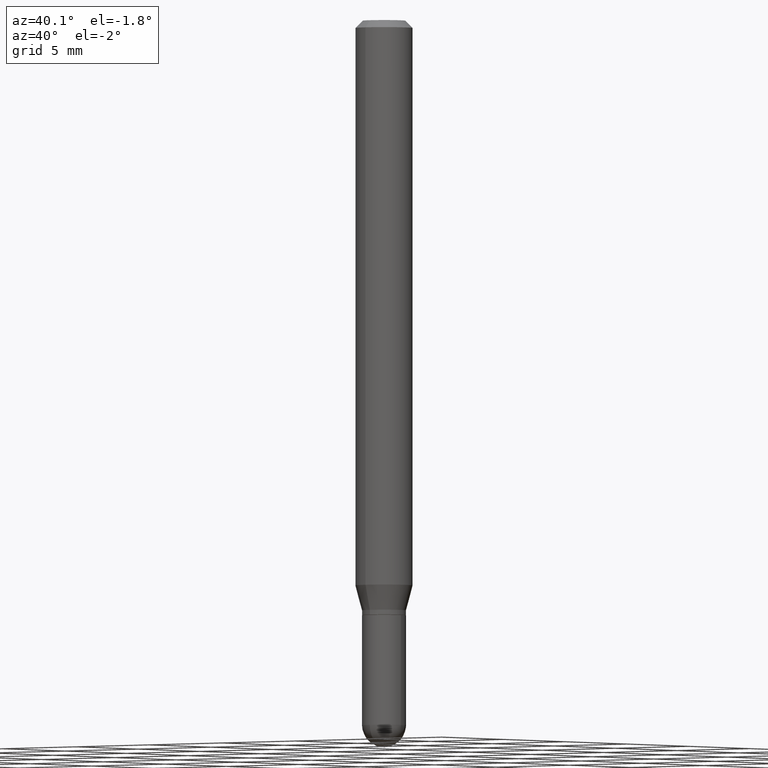
[diagram: clean part render]
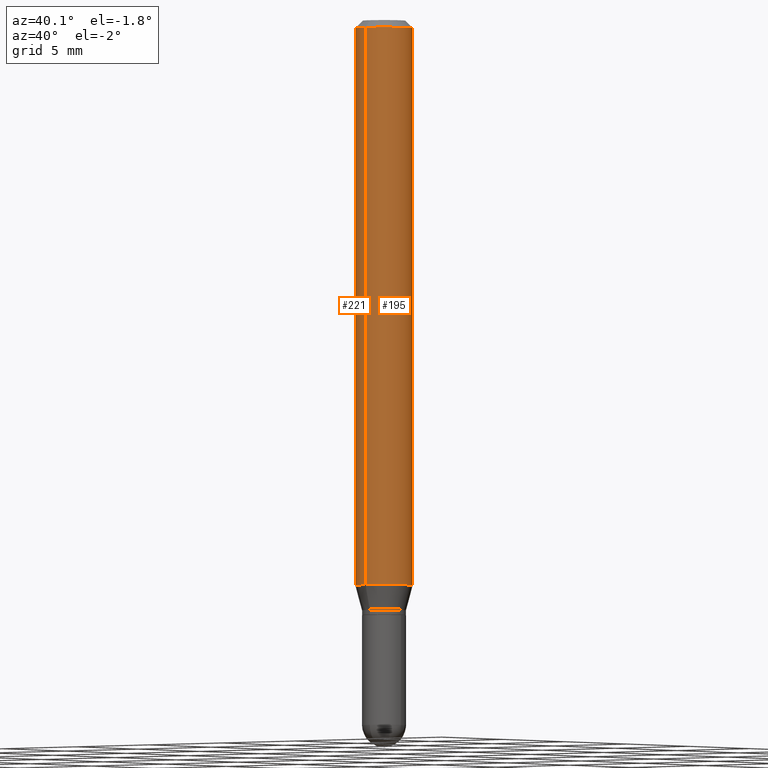
[diagram: same view with one multi-face feature highlighted, each face labeled with its STEP entity id]
A machine part, auxiliary view. The highlighted faces form ONE feature: a constant-radius fillet chain: 2 tangent blend faces with common blend radius 1.4999 mm. The faces share edges in the B-rep.
Their STEP definitions:
[1] entity #221 (Cylinder):
#6 = VERTEX_POINT ( 'NONE', #466 ) ;
#11 = EDGE_LOOP ( 'NONE', ( #365, #241, #356, #209 ) ) ;
#25 = VECTOR ( 'NONE', #178, 39.37007874015748143 ) ;
#44 = AXIS2_PLACEMENT_3D ( 'NONE', #188, #297, #138 ) ;
#53 = CARTESIAN_POINT ( 'NONE',  ( 4.195754854663390985E-16, 0.05904999999999999832, -2.061779851319410269E-16 ) ) ;
#59 = VECTOR ( 'NONE', #458, 39.37007874015748143 ) ;
#73 = VERTEX_POINT ( 'NONE', #482 ) ;
#90 = EDGE_CURVE ( 'NONE', #340, #436, #418, .T. ) ;
#94 = LINE ( 'NONE', #53, #25 ) ;
#130 = AXIS2_PLACEMENT_3D ( 'NONE', #449, #378, #495 ) ;
#133 = CARTESIAN_POINT ( 'NONE',  ( 4.195754854663673989E-16, 0.05904999999999592519, -1.162784301395928699 ) ) ;
#138 = DIRECTION ( 'NONE',  ( -6.982962677686265922E-15, -1.000000000000000000, 3.505890868245046092E-15 ) ) ;
#178 = DIRECTION ( 'NONE',  ( -2.445397710362709294E-29, 3.491583152107383980E-15, 1.000000000000000000 ) ) ;
#188 = CARTESIAN_POINT ( 'NONE',  ( 3.668096565544069372E-31, -5.237374728161084524E-17, -0.01500000000000002373 ) ) ;
#209 = ORIENTED_EDGE ( 'NONE', *, *, #410, .F. ) ;
#221 = ADVANCED_FACE ( 'NONE', ( #490 ), #289, .T. ) ;
#223 = AXIS2_PLACEMENT_3D ( 'NONE', #261, #352, #429 ) ;
#239 = LINE ( 'NONE', #385, #59 ) ;
#241 = ORIENTED_EDGE ( 'NONE', *, *, #90, .T. ) ;
#261 = CARTESIAN_POINT ( 'NONE',  ( 2.843470068279305936E-29, -4.059958076288978365E-15, -1.162784301395928255 ) ) ;
#271 = EDGE_CURVE ( 'NONE', #340, #6, #94, .T. ) ;
#289 = CYLINDRICAL_SURFACE ( 'NONE', #130, 0.05904999999999999832 ) ;
#297 = DIRECTION ( 'NONE',  ( -2.445397710362709294E-29, 3.491583152107384375E-15, 1.000000000000000000 ) ) ;
#340 = VERTEX_POINT ( 'NONE', #133 ) ;
#347 = CARTESIAN_POINT ( 'NONE',  ( -4.123439461173455844E-16, -0.05905000000000406452, -1.162784301395928033 ) ) ;
#352 = DIRECTION ( 'NONE',  ( -2.445397710362709294E-29, 3.491583152107384375E-15, 1.000000000000000000 ) ) ;
#356 = ORIENTED_EDGE ( 'NONE', *, *, #382, .T. ) ;
#365 = ORIENTED_EDGE ( 'NONE', *, *, #271, .F. ) ;
#378 = DIRECTION ( 'NONE',  ( -2.445397710362709294E-29, 3.491583152107384375E-15, 1.000000000000000000 ) ) ;
#382 = EDGE_CURVE ( 'NONE', #436, #73, #239, .T. ) ;
#385 = CARTESIAN_POINT ( 'NONE',  ( -4.123439461173739834E-16, -0.05904999999999999832, 2.061779851319410269E-16 ) ) ;
#410 = EDGE_CURVE ( 'NONE', #6, #73, #493, .T. ) ;
#418 = CIRCLE ( 'NONE', #223, 0.05904999999999999832 ) ;
#429 = DIRECTION ( 'NONE',  ( -6.982962677686265922E-15, -1.000000000000000000, 4.626330217890369336E-15 ) ) ;
#436 = VERTEX_POINT ( 'NONE', #347 ) ;
#449 = CARTESIAN_POINT ( 'NONE',  ( 0.000000000000000000, 0.000000000000000000, 0.000000000000000000 ) ) ;
#458 = DIRECTION ( 'NONE',  ( -2.445397710362709294E-29, 3.491583152107383980E-15, 1.000000000000000000 ) ) ;
#466 = CARTESIAN_POINT ( 'NONE',  ( 4.195754854663677441E-16, 0.05904999999999994975, -0.01500000000000023016 ) ) ;
#482 = CARTESIAN_POINT ( 'NONE',  ( -4.123439461173736383E-16, -0.05905000000000005383, -0.01499999999999981730 ) ) ;
#490 = FACE_OUTER_BOUND ( 'NONE', #11, .T. ) ;
#493 = CIRCLE ( 'NONE', #44, 0.05904999999999999832 ) ;
#495 = DIRECTION ( 'NONE',  ( -6.982962677686265922E-15, -1.000000000000000000, 3.491583152107383980E-15 ) ) ;
[2] entity #195 (Cylinder):
#6 = VERTEX_POINT ( 'NONE', #466 ) ;
#25 = VECTOR ( 'NONE', #178, 39.37007874015748143 ) ;
#32 = DIRECTION ( 'NONE',  ( -2.445397710362709294E-29, 3.491583152107384375E-15, 1.000000000000000000 ) ) ;
#43 = FACE_OUTER_BOUND ( 'NONE', #76, .T. ) ;
#53 = CARTESIAN_POINT ( 'NONE',  ( 4.195754854663390985E-16, 0.05904999999999999832, -2.061779851319410269E-16 ) ) ;
#55 = DIRECTION ( 'NONE',  ( -6.982962677686265922E-15, -1.000000000000000000, 4.626330217890369336E-15 ) ) ;
#59 = VECTOR ( 'NONE', #458, 39.37007874015748143 ) ;
#64 = DIRECTION ( 'NONE',  ( -2.445397710362709294E-29, 3.491583152107384375E-15, 1.000000000000000000 ) ) ;
#71 = AXIS2_PLACEMENT_3D ( 'NONE', #398, #32, #282 ) ;
#73 = VERTEX_POINT ( 'NONE', #482 ) ;
#76 = EDGE_LOOP ( 'NONE', ( #199, #283, #434, #396 ) ) ;
#94 = LINE ( 'NONE', #53, #25 ) ;
#96 = AXIS2_PLACEMENT_3D ( 'NONE', #476, #64, #315 ) ;
#133 = CARTESIAN_POINT ( 'NONE',  ( 4.195754854663673989E-16, 0.05904999999999592519, -1.162784301395928699 ) ) ;
#134 = CIRCLE ( 'NONE', #96, 0.05904999999999999832 ) ;
#178 = DIRECTION ( 'NONE',  ( -2.445397710362709294E-29, 3.491583152107383980E-15, 1.000000000000000000 ) ) ;
#195 = ADVANCED_FACE ( 'NONE', ( #43 ), #367, .T. ) ;
#199 = ORIENTED_EDGE ( 'NONE', *, *, #300, .T. ) ;
#224 = AXIS2_PLACEMENT_3D ( 'NONE', #331, #371, #55 ) ;
#239 = LINE ( 'NONE', #385, #59 ) ;
#271 = EDGE_CURVE ( 'NONE', #340, #6, #94, .T. ) ;
#282 = DIRECTION ( 'NONE',  ( -6.982962677686265922E-15, -1.000000000000000000, 3.491583152107383980E-15 ) ) ;
#283 = ORIENTED_EDGE ( 'NONE', *, *, #271, .T. ) ;
#300 = EDGE_CURVE ( 'NONE', #436, #340, #401, .T. ) ;
#315 = DIRECTION ( 'NONE',  ( -6.982962677686265922E-15, -1.000000000000000000, 3.505890868245046092E-15 ) ) ;
#331 = CARTESIAN_POINT ( 'NONE',  ( 2.843470068279305936E-29, -4.059958076288978365E-15, -1.162784301395928255 ) ) ;
#340 = VERTEX_POINT ( 'NONE', #133 ) ;
#347 = CARTESIAN_POINT ( 'NONE',  ( -4.123439461173455844E-16, -0.05905000000000406452, -1.162784301395928033 ) ) ;
#367 = CYLINDRICAL_SURFACE ( 'NONE', #71, 0.05904999999999999832 ) ;
#371 = DIRECTION ( 'NONE',  ( -2.445397710362709294E-29, 3.491583152107384375E-15, 1.000000000000000000 ) ) ;
#375 = EDGE_CURVE ( 'NONE', #73, #6, #134, .T. ) ;
#382 = EDGE_CURVE ( 'NONE', #436, #73, #239, .T. ) ;
#385 = CARTESIAN_POINT ( 'NONE',  ( -4.123439461173739834E-16, -0.05904999999999999832, 2.061779851319410269E-16 ) ) ;
#396 = ORIENTED_EDGE ( 'NONE', *, *, #382, .F. ) ;
#398 = CARTESIAN_POINT ( 'NONE',  ( 0.000000000000000000, 0.000000000000000000, 0.000000000000000000 ) ) ;
#401 = CIRCLE ( 'NONE', #224, 0.05904999999999999832 ) ;
#434 = ORIENTED_EDGE ( 'NONE', *, *, #375, .F. ) ;
#436 = VERTEX_POINT ( 'NONE', #347 ) ;
#458 = DIRECTION ( 'NONE',  ( -2.445397710362709294E-29, 3.491583152107383980E-15, 1.000000000000000000 ) ) ;
#466 = CARTESIAN_POINT ( 'NONE',  ( 4.195754854663677441E-16, 0.05904999999999994975, -0.01500000000000023016 ) ) ;
#476 = CARTESIAN_POINT ( 'NONE',  ( 3.668096565544069372E-31, -5.237374728161084524E-17, -0.01500000000000002373 ) ) ;
#482 = CARTESIAN_POINT ( 'NONE',  ( -4.123439461173736383E-16, -0.05905000000000005383, -0.01499999999999981730 ) ) ;